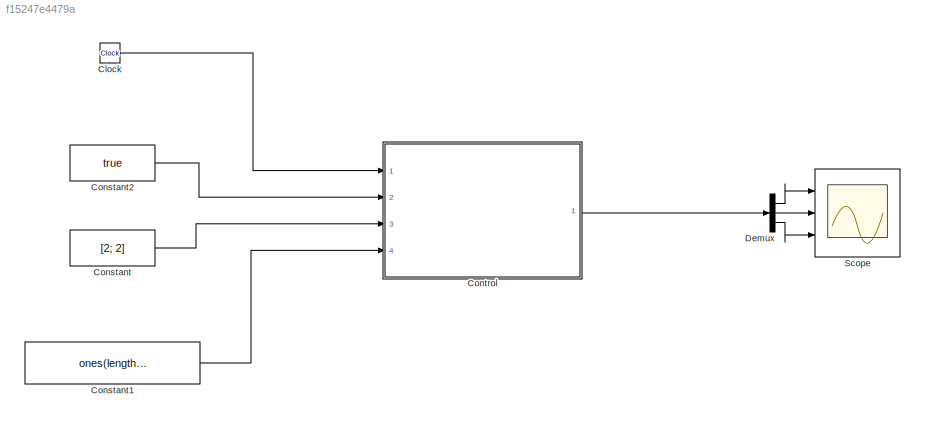
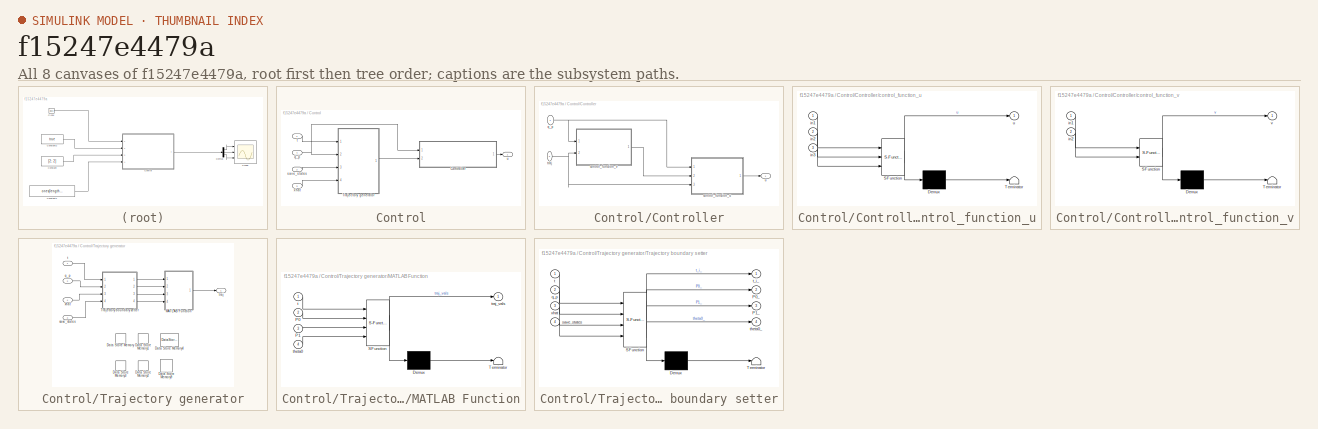
[diagram: thumbnail index - all 8 canvases of the model, root first then tree order]
MODEL slx_f15247e4479a
KIND model
CONFIG AbsTol = auto
CONFIG EnableMultiTasking = off
CONFIG FixedStep = auto
CONFIG MaxStep = auto
CONFIG MinStep = auto
CONFIG RelTol = 1e-3
CONFIG SampleTimeConstraint = Unconstrained
CONFIG Solver = VariableStepAuto
CONFIG SolverName = VariableStepAuto
CONFIG StartTime = 0.0
CONFIG StopTime = 10.0
BLOCK [Clock] Clock
BLOCK [Constant] Constant
  Value = [2; 2]
BLOCK [Constant] Constant1
  Value = ones(length(sys.descrip.states), 1)
BLOCK [Constant] Constant2
  Value = true
BLOCK [SubSystem] Control
  Ports = [4, 1]
  RequestExecContextInheritance = off
  Variant = off
BLOCK [SubSystem] Control/Controller
  Ports = [2, 1]
  RequestExecContextInheritance = off
  Variant = off
BLOCK [SubSystem] Control/Controller/control_function_u
  ErrorFcn = Stateflow.Translate.translate
  PermitHierarchicalResolution = ExplicitOnly
  Ports = [3, 1]
  RequestExecContextInheritance = off
  SFBlockType = MATLAB Function
  TreatAsAtomicUnit = on
  Variant = off
BLOCK [Demux] Control/Controller/control_function_u/ Demux 
  Outputs = 1
  Ports = [1, 1]
BLOCK [S-Function] Control/Controller/control_function_u/ SFunction 
  EnableBusSupport = on
  FunctionName = sf_sfun
  PortCounts = [3 2]
  Ports = [3, 2]
  SFcnIsStateOwnerBlock = off
  SFunctionDeploymentMode = off
  Tag = Stateflow S-Function test_source_value 1
BLOCK [Terminator] Control/Controller/control_function_u/ Terminator 
BLOCK [Inport] Control/Controller/control_function_u/in1
  IconDisplay = Port number
BLOCK [Inport] Control/Controller/control_function_u/in2
  IconDisplay = Port number
  Port = 2
BLOCK [Inport] Control/Controller/control_function_u/in3
  IconDisplay = Port number
  Port = 3
BLOCK [Outport] Control/Controller/control_function_u/u
  IconDisplay = Port number
BLOCK [SubSystem] Control/Controller/control_function_v
  ErrorFcn = Stateflow.Translate.translate
  PermitHierarchicalResolution = ExplicitOnly
  Ports = [2, 1]
  RequestExecContextInheritance = off
  SFBlockType = MATLAB Function
  TreatAsAtomicUnit = on
  Variant = off
BLOCK [Demux] Control/Controller/control_function_v/ Demux 
  Outputs = 1
  Ports = [1, 1]
BLOCK [S-Function] Control/Controller/control_function_v/ SFunction 
  EnableBusSupport = on
  FunctionName = sf_sfun
  PortCounts = [2 2]
  Ports = [2, 2]
  SFcnIsStateOwnerBlock = off
  SFunctionDeploymentMode = off
  Tag = Stateflow S-Function test_source_value 5
BLOCK [Terminator] Control/Controller/control_function_v/ Terminator 
BLOCK [Inport] Control/Controller/control_function_v/in1
  IconDisplay = Port number
BLOCK [Inport] Control/Controller/control_function_v/in2
  IconDisplay = Port number
  Port = 2
BLOCK [Outport] Control/Controller/control_function_v/v
  IconDisplay = Port number
BLOCK [Inport] Control/Controller/q_p
  IconDisplay = Port number
BLOCK [Inport] Control/Controller/traj
  IconDisplay = Port number
  Port = 2
BLOCK [Outport] Control/Controller/u
  IconDisplay = Port number
BLOCK [SubSystem] Control/Trajectory generator
  Ports = [4, 1]
  RequestExecContextInheritance = off
  Variant = off
BLOCK [DataStoreMemory] Control/Trajectory generator/Data Store Memory
  DataStoreName = P0
  Dimensions = [2, 1]
  InitialValue = x0(1:2)
  OutDataTypeStr = double
  ReadBeforeWriteMsg = warning
  ShowAdditionalParam = off
  SignalType = real
  WriteAfterReadMsg = warning
  WriteAfterWriteMsg = warning
BLOCK [DataStoreMemory] Control/Trajectory generator/Data Store Memory1
  DataStoreName = P1
  InitialValue = xhat0
  OutDataTypeStr = double
  ReadBeforeWriteMsg = warning
  ShowAdditionalParam = off
  SignalType = real
  WriteAfterReadMsg = warning
  WriteAfterWriteMsg = warning
BLOCK [DataStoreMemory] Control/Trajectory generator/Data Store Memory2
  DataStoreName = theta0
  InitialValue = x0(3)
  OutDataTypeStr = double
  ReadBeforeWriteMsg = warning
  ShowAdditionalParam = off
  SignalType = real
  WriteAfterReadMsg = warning
  WriteAfterWriteMsg = warning
BLOCK [DataStoreMemory] Control/Trajectory generator/Data Store Memory3
  DataStoreName = t_i
  OutDataTypeStr = double
  ReadBeforeWriteMsg = warning
  ShowAdditionalParam = off
  SignalType = real
  WriteAfterReadMsg = warning
  WriteAfterWriteMsg = warning
BLOCK [DataStoreMemory] Control/Trajectory generator/Data Store Memory4
  DataStoreName = traj_params
  OutDataTypeStr = double
  ReadBeforeWriteMsg = warning
  ShowAdditionalParam = off
  SignalType = real
  WriteAfterReadMsg = warning
  WriteAfterWriteMsg = warning
BLOCK [DataStoreMemory] Control/Trajectory generator/Data Store Memory9
  DataStoreName = t_0
  OutDataTypeStr = double
  ReadBeforeWriteMsg = warning
  ShowAdditionalParam = off
  SignalType = real
  WriteAfterReadMsg = warning
  WriteAfterWriteMsg = warning
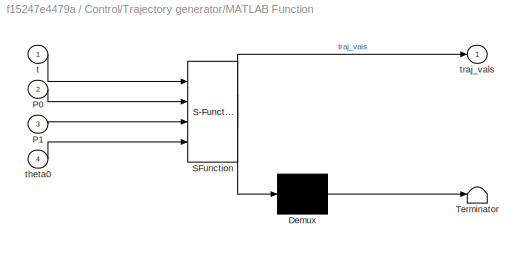
BLOCK [SubSystem] Control/Trajectory generator/MATLAB Function
  ErrorFcn = Stateflow.Translate.translate
  PermitHierarchicalResolution = ExplicitOnly
  Ports = [4, 1]
  RequestExecContextInheritance = off
  SFBlockType = MATLAB Function
  TreatAsAtomicUnit = on
  Variant = off
BLOCK [Demux] Control/Trajectory generator/MATLAB Function/ Demux 
  Outputs = 1
  Ports = [1, 1]
BLOCK [S-Function] Control/Trajectory generator/MATLAB Function/ SFunction 
  EnableBusSupport = on
  FunctionName = sf_sfun
  Parameters = trajectory_info
  PortCounts = [4 2]
  Ports = [4, 2]
  SFcnIsStateOwnerBlock = off
  SFunctionDeploymentMode = off
  Tag = Stateflow S-Function test_source_value 2
BLOCK [Terminator] Control/Trajectory generator/MATLAB Function/ Terminator 
BLOCK [Inport] Control/Trajectory generator/MATLAB Function/P0
  IconDisplay = Port number
  Port = 2
BLOCK [Inport] Control/Trajectory generator/MATLAB Function/P1
  IconDisplay = Port number
  Port = 3
BLOCK [Inport] Control/Trajectory generator/MATLAB Function/t
  IconDisplay = Port number
BLOCK [Inport] Control/Trajectory generator/MATLAB Function/theta0
  IconDisplay = Port number
  Port = 4
BLOCK [Outport] Control/Trajectory generator/MATLAB Function/traj_vals
  IconDisplay = Port number
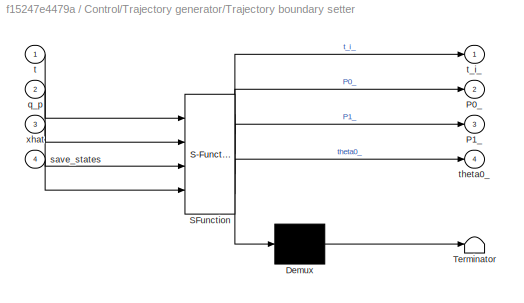
BLOCK [SubSystem] Control/Trajectory generator/Trajectory boundary setter
  ErrorFcn = Stateflow.Translate.translate
  PermitHierarchicalResolution = ExplicitOnly
  Ports = [4, 4]
  RequestExecContextInheritance = off
  SFBlockType = MATLAB Function
  TreatAsAtomicUnit = on
  Variant = off
BLOCK [Demux] Control/Trajectory generator/Trajectory boundary setter/ Demux 
  Outputs = 1
  Ports = [1, 1]
BLOCK [S-Function] Control/Trajectory generator/Trajectory boundary setter/ SFunction 
  EnableBusSupport = on
  FunctionName = sf_sfun
  PortCounts = [4 5]
  Ports = [4, 5]
  SFcnIsStateOwnerBlock = off
  SFunctionDeploymentMode = off
  Tag = Stateflow S-Function test_source_value 4
BLOCK [Terminator] Control/Trajectory generator/Trajectory boundary setter/ Terminator 
BLOCK [Outport] Control/Trajectory generator/Trajectory boundary setter/P0_
  IconDisplay = Port number
  Port = 2
BLOCK [Outport] Control/Trajectory generator/Trajectory boundary setter/P1_
  IconDisplay = Port number
  Port = 3
BLOCK [Inport] Control/Trajectory generator/Trajectory boundary setter/q_p
  IconDisplay = Port number
  Port = 2
BLOCK [Inport] Control/Trajectory generator/Trajectory boundary setter/save_states
  IconDisplay = Port number
  Port = 4
BLOCK [Inport] Control/Trajectory generator/Trajectory boundary setter/t
  IconDisplay = Port number
BLOCK [Outport] Control/Trajectory generator/Trajectory boundary setter/t_i_
  IconDisplay = Port number
BLOCK [Outport] Control/Trajectory generator/Trajectory boundary setter/theta0_
  IconDisplay = Port number
  Port = 4
BLOCK [Inport] Control/Trajectory generator/Trajectory boundary setter/xhat
  IconDisplay = Port number
  Port = 3
BLOCK [Inport] Control/Trajectory generator/q_p
  IconDisplay = Port number
  Port = 2
BLOCK [Inport] Control/Trajectory generator/save_states
  IconDisplay = Port number
  Port = 3
BLOCK [Inport] Control/Trajectory generator/t
  IconDisplay = Port number
BLOCK [Outport] Control/Trajectory generator/traj
  IconDisplay = Port number
BLOCK [Inport] Control/Trajectory generator/xhat
  IconDisplay = Port number
  Port = 4
BLOCK [Inport] Control/q_p
  IconDisplay = Port number
  Port = 4
BLOCK [Inport] Control/save_states
  IconDisplay = Port number
  Port = 2
BLOCK [Inport] Control/t
  IconDisplay = Port number
BLOCK [Outport] Control/u
  IconDisplay = Port number
BLOCK [Inport] Control/xhat
  IconDisplay = Port number
  Port = 3
BLOCK [Demux] Demux
  DisplayOption = bar
  Outputs = 3
  Ports = [1, 3]
BLOCK [Scope] Scope
  NumInputPorts = 3
  Ports = [3]
  ScopeSpecificationString = Simulink.scopes.TimeScopeBlockCfg('CurrentConfiguration', extmgr.ConfigurationSet(extmgr.Configuration('Core','General UI',true),extmgr.Configuration('Core','Source UI',true),extmgr.Configuration('Sources','WiredSimulink',true),extmgr.Configuration('Visuals','Time Domain',true,'SerializedDisplays',{struct('MinYLimReal','-7.39178','MaxYLimReal','0.5824','YLabelReal','','MinYLimMag','0.00000','MaxYL...<+2639ch>
LINE Clock:1 -> Control:1
LINE Constant1:1 -> Control:4
LINE Constant2:1 -> Control:2
LINE Constant:1 -> Control:3
LINE Control/Controller/control_function_u:1 -> Control/Controller/u:1
LINE Control/Controller/control_function_v:1 -> Control/Controller/control_function_u:2
NET Control/Controller/q_p:1 -> Control/Controller/control_function_u:1, Control/Controller/control_function_v:1
NET Control/Controller/traj:1 -> Control/Controller/control_function_u:3, Control/Controller/control_function_v:2
LINE Control/Controller:1 -> Control/u:1
LINE Control/Trajectory generator/MATLAB Function:1 -> Control/Trajectory generator/traj:1
LINE Control/Trajectory generator/Trajectory boundary setter:1 -> Control/Trajectory generator/MATLAB Function:1
LINE Control/Trajectory generator/Trajectory boundary setter:2 -> Control/Trajectory generator/MATLAB Function:2
LINE Control/Trajectory generator/Trajectory boundary setter:3 -> Control/Trajectory generator/MATLAB Function:3
LINE Control/Trajectory generator/Trajectory boundary setter:4 -> Control/Trajectory generator/MATLAB Function:4
LINE Control/Trajectory generator/q_p:1 -> Control/Trajectory generator/Trajectory boundary setter:2
LINE Control/Trajectory generator/save_states:1 -> Control/Trajectory generator/Trajectory boundary setter:4
LINE Control/Trajectory generator/t:1 -> Control/Trajectory generator/Trajectory boundary setter:1
LINE Control/Trajectory generator/xhat:1 -> Control/Trajectory generator/Trajectory boundary setter:3
LINE Control/Trajectory generator:1 -> Control/Controller:2
NET Control/q_p:1 -> Control/Controller:1, Control/Trajectory generator:2
LINE Control/save_states:1 -> Control/Trajectory generator:3
LINE Control/t:1 -> Control/Trajectory generator:1
LINE Control/xhat:1 -> Control/Trajectory generator:4
LINE Control:1 -> Demux:1
LINE Demux:1 -> Scope:1
LINE Demux:2 -> Scope:2
LINE Demux:3 -> Scope:3
note: NET lines group one-source signal fan-out (src -> all destinations, sorted); 1:1 wires keep LINE
CHART Control/Controller/control_function_u states=1 transitions=1
  STATE_LABEL 'eML_blk_kernel()'
  STATE_LABEL 'SCRIPT:\nfunction u = ControlFunction_u(in1,in2,in3)\n\n%    This function was generated by the Symbolic Math Toolbox version 7.2.\n\n%    18-Feb-2021 10:17:31\n\n\n\np1 = in1(7,:);\n\np2 = in1(8,:);\n\np3 = in1(9,:);\n\nth = in1(3,:);\n\nth1 = in1(4,:);\n\nth2 = in1(5,:);\n\nth3 = in1(6,:);\n\nv1 = in2(1,:);\n\nv2 = in2(2,:);\n\nv3 = in2(3,:);\n\nx = in1(1,:);\n\ny = in1(2,:);\n\ny1_ref = in3(1,:);\n\ny2_ref = in3(4,:);\n\ny3_ref = ...<+3479ch>'
CHART Control/Trajectory generator/MATLAB Function states=1 transitions=1
  STATE_LABEL 'eML_blk_kernel()'
  STATE_LABEL 'SCRIPT:\nfunction traj_vals = traj_gen(t, P0, P1, theta0, trajectory_info)\n    global t_0;\n\n    % Origin and destiny\n    P0 = double(P0);\n    P1 = double(P1);    \n    \n    % Trajectory options\n    T = trajectory_info.T_traj;\n    trajectory_info.thetaA = theta0;\n    deltas = trajectory_info.deltas;\n    \n    delta_x = deltas(1);\n    delta_y = deltas(2);\n    delta_th = deltas(3);\n    \n    alpha_ = (t ...<+221ch>'
CHART Control/Trajectory generator/Trajectory boundary setter states=1 transitions=1
  STATE_LABEL 'eML_blk_kernel()'
  STATE_LABEL 'SCRIPT:\nfunction [t_i_, P0_, P1_, theta0_] = trajectory(t, q_p, xhat, save_states)\n    global P0 P1 t_0 theta0;\n    \n    % Initial and end trajectory points\n    if(save_states)\n        t_0 = t;\n        \n        P0 = q_p(1:2);\n        P1 = xhat;\n        \n        theta0 = q_p(3);\n        \n        t_i = t - t_0;\n    end\n    \n    % Save state points\n    P0_ = P0;\n    P1_ = P1;\n    theta0_ = theta0;\n  ...<+22ch>'
CHART Control/Controller/control_function_v states=1 transitions=1
  STATE_LABEL 'eML_blk_kernel()'
  STATE_LABEL 'SCRIPT:\nfunction v = ControlFunction_v(in1,in2)\n\n%    This function was generated by the Symbolic Math Toolbox version 7.2.\n\n%    18-Feb-2021 10:17:31\n\n\n\np1 = in1(7,:);\n\np2 = in1(8,:);\n\np3 = in1(9,:);\n\nth = in1(3,:);\n\nx = in1(1,:);\n\ny = in1(2,:);\n\ny1_ref = in2(1,:);\n\ny2_ref = in2(4,:);\n\ny3_ref = in2(7,:);\n\nyp1_ref = in2(2,:);\n\nyp2_ref = in2(5,:);\n\nyp3_ref = in2(8,:);\n\nv = [p1.*-8.850851939315746-p...<+956ch>'
